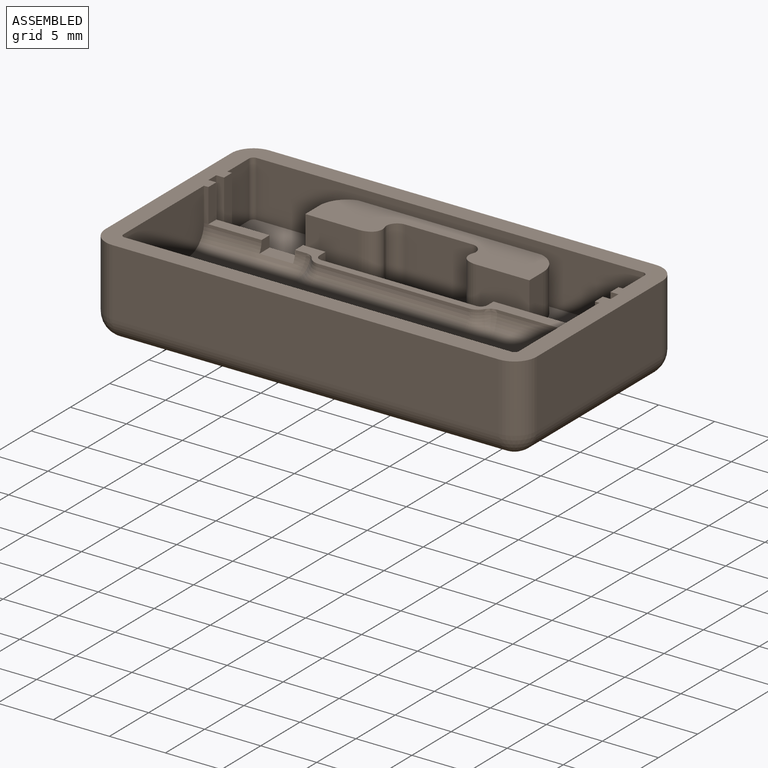
[diagram: assembled view]
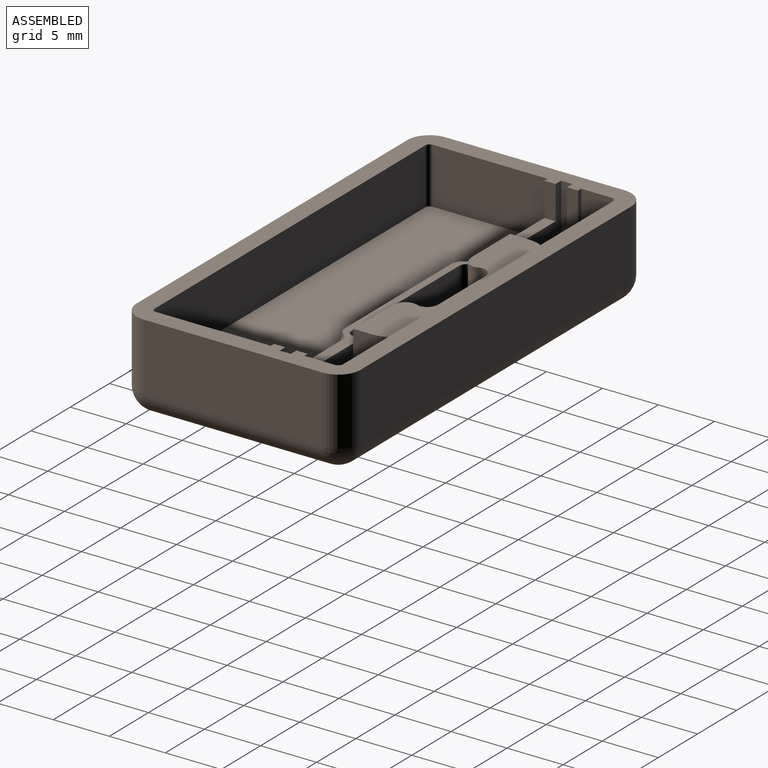
[diagram: assembled view, second angle]
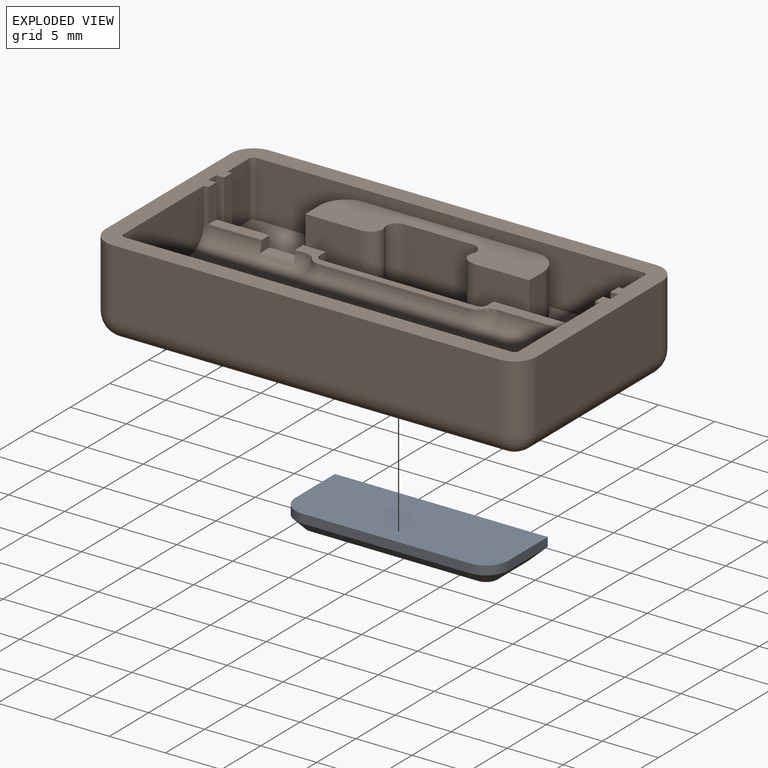
[diagram: exploded view]
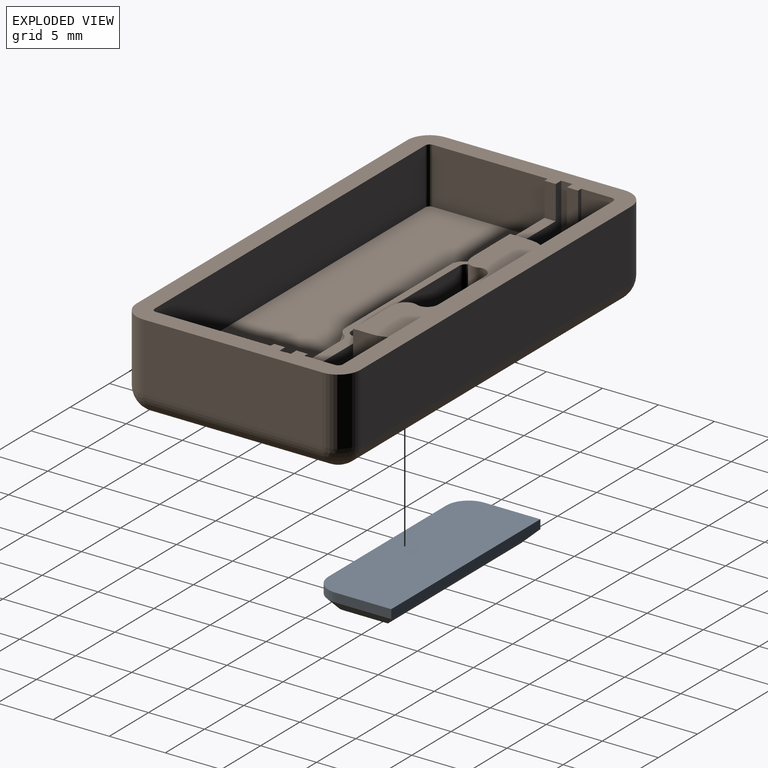
[diagram: exploded view, second angle]
ASSEMBLY  parts=2 mates=2
PART A: 14 faces, bbox 19x1.8x7 mm
  f0: plane 5x0.8mm, normal (1,0,0), area 4mm2, adj f1,f5,f7,f9
  f1: plane 19x0.8mm, normal (0,0,1), area 15.2mm2, adj f0,f2,f5,f11
  f2: plane 5x0.8mm, normal (-1,0,0), area 4mm2, adj f1,f5,f6,f13
  f3: plane 15x0.8mm, normal (0,0,-1), area 12mm2, adj f5,f6,f7,f10
  f4: plane 17x5mm, normal (0,-1,0), area 84.6mm2, adj f8,f9,f10,f11,f12,f13
  f5: plane 19x7mm, normal (0,1,0), area 131.3mm2, adj f0,f1,f2,f3,f6,f7
  f6: cylinder r=2mm len=2mm, axis (0,-1,0), area 2.5mm2, adj f2,f3,f5,f12
  f7: cylinder r=2mm len=2mm, axis (0,1,0), area 2.5mm2, adj f0,f3,f5,f8
  f8: cone r=1mm half-angle=45deg, axis (0,1,0), area 3.3mm2, adj f4,f7,f9,f10
  f9: plane 5x1mm, normal (0.71,-0.71,0), area 6.4mm2, adj f0,f4,f8,f11
  f10: plane 15x1mm, normal (0,-0.71,-0.71), area 21.2mm2, adj f3,f4,f8,f12
  f11: plane 19x1mm, normal (0,-0.71,0.71), area 25.5mm2, adj f1,f4,f9,f13
  f12: cone r=1mm half-angle=45deg, axis (0,1,0), area 3.3mm2, adj f4,f6,f10,f13
  f13: plane 5x1mm, normal (-0.71,-0.71,0), area 6.4mm2, adj f2,f4,f11,f12
PART B: 104 faces, bbox 38.5x20x8 mm
  f0: plane 16x2mm, normal (0,1,0), area 29mm2, adj f4,f57,f64,f65,f97,f98,f100,f102
  f1: plane 26.76x2.01mm, normal (0,0,1), area 22mm2, adj f9,f11,f12,f21,f35,f36,f67,f68
  f2: plane 35.9x5.6mm, normal (0,0,1), area 100mm2, adj f5,f7,f8,f9,f10,f11,f21,f22
  f3: plane 35.3x8.65mm, normal (0,0,1), area 288.6mm2, adj f38,f39,f40,f41,f42,f89,f90,f91
  f4: plane 34.5x16mm, normal (0,0,-1), area 393.7mm2, adj f0,f46,f49,f50,f53,f54,f56,f64
  f5: plane 1x0.92mm, normal (0.81,0.58,0), area 1.1mm2, adj f2,f57,f59,f61
  f6: plane 6x5mm, normal (0,-1,0), area 30mm2, adj f57,f60,f63,f76
  f7: plane 1x0.92mm, normal (-0.81,0.58,0), area 1.1mm2, adj f2,f57,f58,f62
  f8: plane 4.69x1mm, normal (0,1,0), area 4.7mm2, adj f2,f57,f58,f59
  f9: plane 3x0.75mm, normal (1,0,0), area 1.8mm2, adj f1,f2,f21,f57,f66,f67
  f10: plane 13.8x1mm, normal (0,-1,0), area 13.8mm2, adj f2,f57,f66,f69
  f11: plane 3x0.75mm, normal (-1,0,0), area 1.8mm2, adj f1,f2,f35,f57,f68,f69
  f12: plane 13.8x3mm, normal (0,1,0), area 41.4mm2, adj f1,f57,f67,f68
  f13: plane 34.5x6mm, normal (0,-1,0), area 207mm2, adj f14,f20,f45,f53
  f14: cylinder r=2mm len=6mm, axis (0,0,-1), area 18.8mm2, adj f13,f15,f45,f51
  f15: plane 16x6mm, normal (1,0,0), area 96mm2, adj f14,f16,f45,f49
  f16: cylinder r=2mm len=6mm, axis (0,0,-1), area 18.8mm2, adj f15,f17,f45,f47
  f17: plane 34.5x6mm, normal (0,1,0), area 207mm2, adj f16,f18,f45,f46
  f18: cylinder r=2mm len=6mm, axis (0,0,-1), area 18.8mm2, adj f17,f19,f45,f48
  f19: plane 16x6mm, normal (-1,0,0), area 96mm2, adj f18,f20,f45,f50
  f20: cylinder r=2mm len=6mm, axis (0,0,-1), area 18.8mm2, adj f13,f19,f45,f52
  f21: plane 10.45x5mm, normal (0,1,0), area 20mm2, adj f1,f2,f9,f22,f44,f45,f77,f86
  f22: plane 5x1mm, normal (1,0,0), area 5mm2, adj f2,f21,f23,f45
  f23: plane 5x0.7mm, normal (0,-1,0), area 3.5mm2, adj f2,f22,f24,f45
  f24: plane 5x1mm, normal (1,0,0), area 5mm2, adj f2,f23,f25,f45
  f25: plane 5x0.4mm, normal (0,1,0), area 2mm2, adj f2,f24,f26,f45
  f26: plane 5x2.75mm, normal (1,0,0), area 13.7mm2, adj f2,f25,f27,f45
  f27: cylinder r=0.4mm len=5mm, axis (0,0,-1), area 3.1mm2, adj f2,f26,f28,f45
  f28: plane 34.5x5mm, normal (0,-1,0), area 106.9mm2, adj f2,f27,f29,f45,f73,f74,f76
  f29: cylinder r=0.4mm len=5mm, axis (0,0,-1), area 3.1mm2, adj f2,f28,f30,f45
  f30: plane 5x2.75mm, normal (-1,0,0), area 13.7mm2, adj f2,f29,f31,f45
  f31: plane 5x0.4mm, normal (0,1,0), area 2mm2, adj f2,f30,f32,f45
  f32: plane 5x1mm, normal (-1,0,0), area 5mm2, adj f2,f31,f33,f45
  f33: plane 5x0.7mm, normal (0,-1,0), area 3.5mm2, adj f2,f32,f34,f45
  f34: plane 5x1mm, normal (-1,0,0), area 5mm2, adj f2,f33,f35,f45
  f35: plane 10.45x5mm, normal (0,1,0), area 23mm2, adj f1,f2,f11,f34,f36,f45
  f36: plane 3x1mm, normal (-1,0,0), area 3mm2, adj f1,f35,f37,f45
  f37: plane 3x0.4mm, normal (0,-1,0), area 1.2mm2, adj f36,f38,f45,f89
  f38: plane 10.25x5mm, normal (-1,0,0), area 50.4mm2, adj f3,f37,f39,f45,f89
  f39: cylinder r=0.4mm len=5mm, axis (0,0,-1), area 3.1mm2, adj f3,f38,f40,f45
  f40: plane 34.5x5mm, normal (0,1,0), area 172.5mm2, adj f3,f39,f41,f45
  f41: cylinder r=0.4mm len=5mm, axis (0,0,-1), area 3.1mm2, adj f3,f40,f42,f45
  f42: plane 10.25x5mm, normal (1,0,0), area 50.4mm2, adj f3,f41,f43,f45,f92
  f43: plane 3x0.4mm, normal (0,-1,0), area 1.2mm2, adj f42,f44,f45,f92
  f44: plane 3x1mm, normal (1,0,0), area 3mm2, adj f21,f43,f45,f77
  f45: plane 38.5x20mm, normal (0,0,1), area 174.7mm2, adj f13,f14,f15,f16,f17,f18,f19,f20
  f46: cylinder r=2mm len=34.5mm, axis (-1,0,0), area 108.4mm2, adj f4,f17,f47,f48,f55
  f47: sphere r=2mm, area 6.3mm2, adj f16,f46,f49
  f48: sphere r=2mm, area 6.3mm2, adj f18,f46,f50
  f49: cylinder r=2mm len=16mm, axis (0,1,0), area 50.3mm2, adj f4,f15,f47,f51
  f50: cylinder r=2mm len=16mm, axis (0,-1,0), area 50.3mm2, adj f4,f19,f48,f52
  f51: sphere r=2mm, area 6.3mm2, adj f14,f49,f53
  f52: sphere r=2mm, area 6.3mm2, adj f20,f50,f53
  f53: cylinder r=2mm len=34.5mm, axis (1,0,0), area 108.4mm2, adj f4,f13,f51,f52
  f54: plane 6x2mm, normal (1,0,0), area 12mm2, adj f4,f55,f57,f64
  f55: plane 20x2mm, normal (0,-1,0), area 40mm2, adj f46,f54,f56,f57
  f56: plane 6x2mm, normal (-1,0,0), area 12mm2, adj f4,f55,f57,f65
  f57: plane 20x9mm, normal (0,0,-1), area 108.4mm2, adj f0,f5,f6,f7,f8,f9,f10,f11
  f58: cylinder r=1mm len=1mm, axis (0,0,1), area 1mm2, adj f2,f7,f8,f57
  f59: cylinder r=1mm len=1mm, axis (0,0,-1), area 1mm2, adj f2,f5,f8,f57
  f60: cylinder r=1mm len=5mm, axis (0,0,1), area 7.6mm2, adj f6,f57,f61,f76
  f61: cylinder r=1mm len=5mm, axis (0,0,1), area 1.8mm2, adj f2,f5,f57,f60,f76,f84
  f62: cylinder r=1mm len=5mm, axis (0,0,1), area 1.8mm2, adj f2,f7,f57,f63,f76,f85
  f63: cylinder r=1mm len=5mm, axis (0,0,-1), area 7.6mm2, adj f6,f57,f62,f76
  f64: cylinder r=2mm len=2mm, axis (0,0,-1), area 6.3mm2, adj f0,f4,f54,f57,f101
  f65: cylinder r=2mm len=2mm, axis (0,0,1), area 6.3mm2, adj f0,f4,f56,f57,f96
  f66: cylinder r=0.6mm len=1mm, axis (0,0,-1), area 0.9mm2, adj f2,f9,f10,f57
  f67: cylinder r=0.6mm len=3mm, axis (0,0,-1), area 2.8mm2, adj f1,f9,f12,f57
  f68: cylinder r=0.6mm len=3mm, axis (0,0,1), area 2.8mm2, adj f1,f11,f12,f57
  f69: cylinder r=0.6mm len=1mm, axis (0,0,1), area 0.9mm2, adj f2,f10,f11,f57
  f70: plane 4.75x4mm, normal (0,-1,0), area 19mm2, adj f2,f75,f76,f82
  f71: plane 4.75x4mm, normal (0,-1,0), area 19mm2, adj f2,f72,f76,f83
  f72: plane 4x1.75mm, normal (1,0,0), area 7mm2, adj f2,f71,f73,f76
  f73: cylinder r=2.5mm len=4mm, axis (0,0,-1), area 12.9mm2, adj f2,f28,f72,f76
  f74: cylinder r=2.5mm len=4mm, axis (0,0,-1), area 12.9mm2, adj f2,f28,f75,f76
  f75: plane 4x1.75mm, normal (-1,0,0), area 7mm2, adj f2,f70,f74,f76
  f76: plane 20x4.15mm, normal (0,0,1), area 59.4mm2, adj f6,f28,f60,f61,f62,f63,f70,f71
  f77: plane 4.75x1mm, normal (0,0,1), area 4.8mm2, adj f21,f44,f86,f92
  f78: cylinder r=1.3mm len=4mm, axis (0,0,-1), area 32.7mm2, adj f57,f79
  f79: plane 2.6x2.6mm, normal (0,0,-1), area 5.3mm2, adj f78
  f80: cylinder r=1.3mm len=4mm, axis (0,0,-1), area 32.7mm2, adj f57,f81
  f81: plane 2.6x2.6mm, normal (0,0,-1), area 5.3mm2, adj f80
  f82: cylinder r=2mm len=4mm, axis (0,0,1), area 3.2mm2, adj f2,f70,f76,f84
  f83: cylinder r=2mm len=4mm, axis (0,0,-1), area 3.2mm2, adj f2,f71,f76,f85
  f84: cylinder r=1mm len=4mm, axis (0,0,1), area 6.2mm2, adj f2,f61,f76,f82
  f85: cylinder r=1mm len=4mm, axis (0,0,-1), area 6.2mm2, adj f2,f62,f76,f83
  f86: plane 1.27x1mm, normal (1,0,0), area 1.1mm2, adj f21,f77,f88,f92
  f87: plane 1.27x1mm, normal (-1,0,0), area 1.1mm2, adj f1,f21,f88,f92
  f88: plane 3x1.27mm, normal (0,0,1), area 3.8mm2, adj f21,f86,f87,f92
  f89: cylinder r=2mm len=9.11mm, axis (1,0,0), area 27.9mm2, adj f1,f3,f37,f38,f94
  f90: torus R=3.1mm, axis (0,0,1), area 5.2mm2, adj f1,f3,f91,f94
  f91: cylinder r=2mm len=13.5mm, axis (1,0,0), area 42.4mm2, adj f1,f3,f90,f93
  f92: cylinder r=2mm len=9.11mm, axis (1,0,0), area 24.7mm2, adj f1,f3,f42,f43,f77,f86,f87,f88
  f93: torus R=3.1mm, axis (0,0,1), area 5.2mm2, adj f1,f3,f91,f95
  f94: bspline ~2.16x2mm, area 1.3mm2, adj f1,f89,f90
  f95: bspline ~2.16x2mm, area 1.3mm2, adj f1,f92,f93
  f96: plane 1x1mm, normal (-1,0,0), area 1mm2, adj f57,f65,f97,f99
  f97: plane 1.5x1mm, normal (0,0,1), area 1.5mm2, adj f0,f96,f98,f99
  f98: plane 1x1mm, normal (1,0,0), area 1mm2, adj f0,f57,f97,f99
  f99: plane 1.5x1mm, normal (0,1,0), area 1.5mm2, adj f57,f96,f97,f98
  f100: plane 1.5x1mm, normal (0,0,1), area 1.5mm2, adj f0,f101,f102,f103
  f101: plane 1x1mm, normal (1,0,0), area 1mm2, adj f57,f64,f100,f103
  f102: plane 1x1mm, normal (-1,0,0), area 1mm2, adj f0,f57,f100,f103
  f103: plane 1.5x1mm, normal (0,1,0), area 1.5mm2, adj f57,f100,f101,f102
PLACE A rot(axis=(0,0.71,0.71),180deg) t=(-0.01,3.81,-4.78)mm
PLACE B t=(-0.01,0.01,-6.58)mm
MATE parallel A.f5 <-> B.f57  axis (0,0,1) through (-0.01,3.85,-4.78)mm
MATE planar A.f4 <-> B.f4  axis (0,0,-1) through (-0.01,3.82,-6.58)mm
